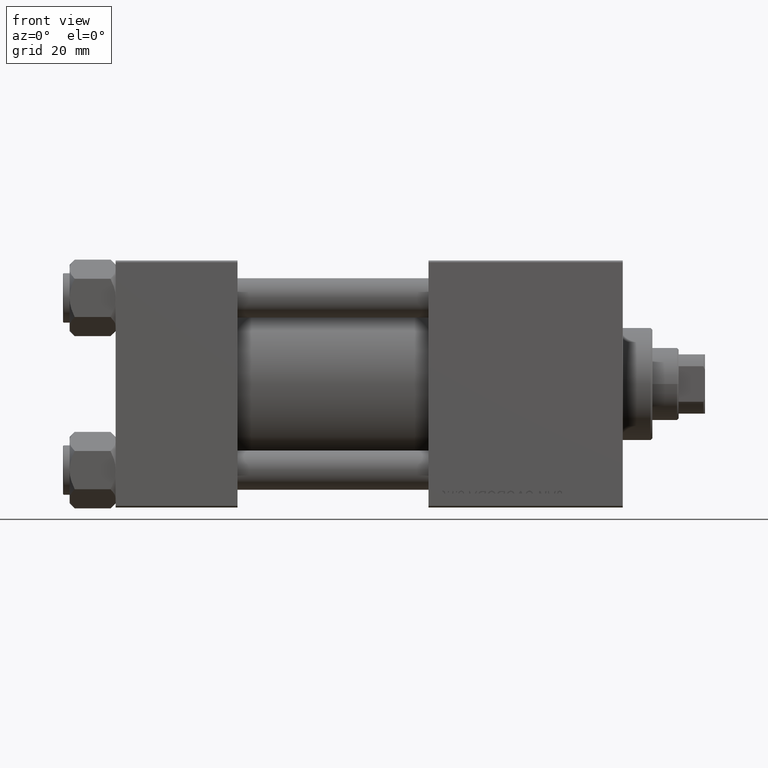
[diagram: clean part render]
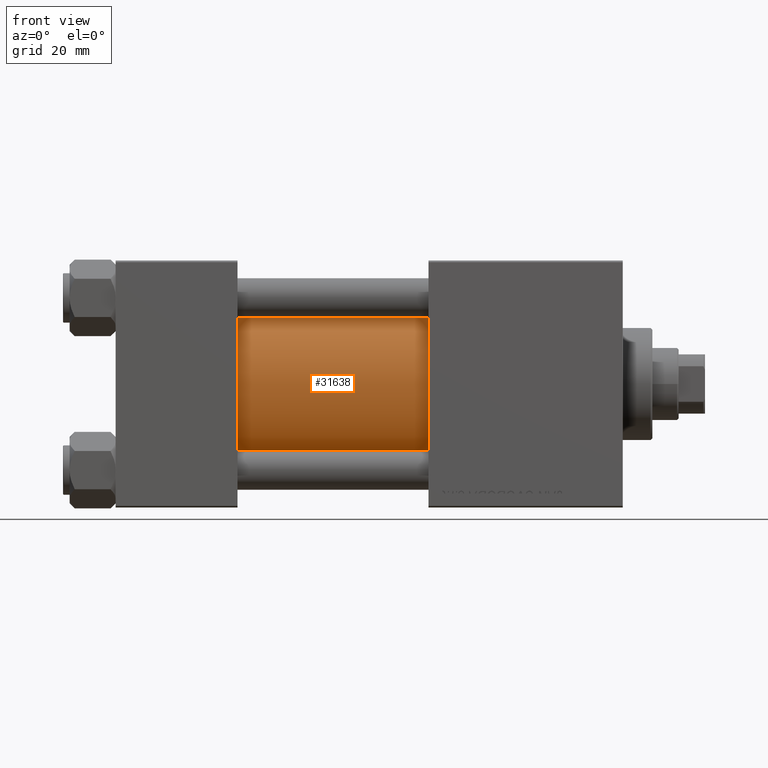
[diagram: same view with one face highlighted and labeled with its STEP entity id]
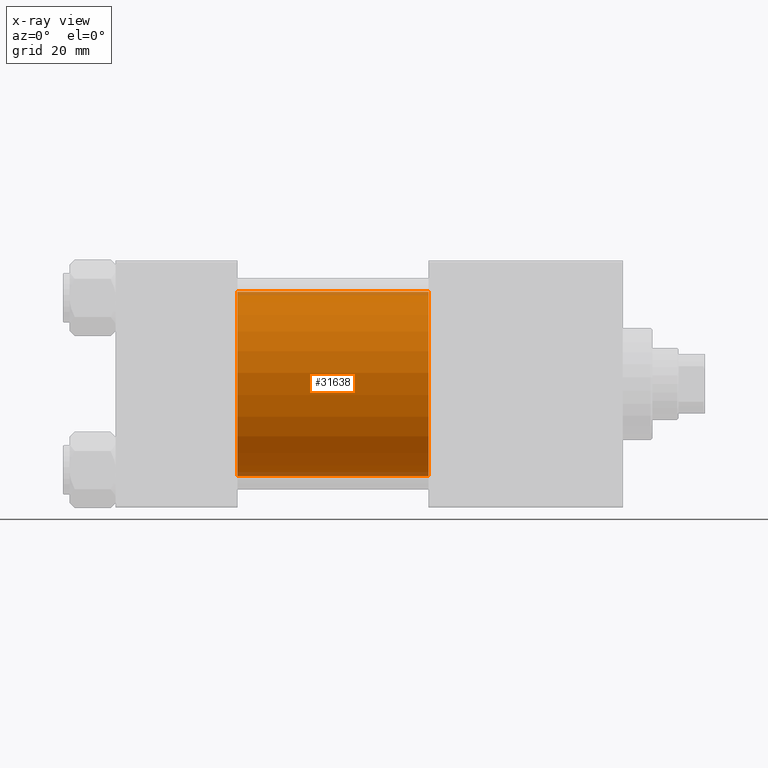
[diagram: x-ray of the same camera — body ghosted, the highlighted face saturated]
A machine part, front view. The second image highlights one B-rep face of the part: STEP entity #31638.
The next image is the same camera in x-ray: the body ghosted, the highlighted face saturated — about 4% of this face is hidden behind the body in this view.
In plain terms, the highlighted cylindrical surface (partial cylindrical patch) has radius 28 mm, axis along (-1, -0, -0).
Its self-contained STEP definition (entity closure, byte-faithful):
#164 = CARTESIAN_POINT ( 'NONE',  ( 95.00000000000000000, -2.602085213965210642E-15, 0.000000000000000000 ) ) ;
#1592 = DIRECTION ( 'NONE',  ( -1.000000000000000000, -0.000000000000000000, -0.000000000000000000 ) ) ;
#3144 = VECTOR ( 'NONE', #27318, 1000.000000000000000 ) ;
#3363 = AXIS2_PLACEMENT_3D ( 'NONE', #20796, #12644, #43453 ) ;
#8349 = VECTOR ( 'NONE', #1592, 1000.000000000000000 ) ;
#9065 = CIRCLE ( 'NONE', #3363, 28.00000000000000000 ) ;
#9921 = AXIS2_PLACEMENT_3D ( 'NONE', #164, #38321, #50055 ) ;
#10609 = ORIENTED_EDGE ( 'NONE', *, *, #28758, .F. ) ;
#12644 = DIRECTION ( 'NONE',  ( 1.000000000000000000, -0.000000000000000000, 0.000000000000000000 ) ) ;
#16845 = FACE_OUTER_BOUND ( 'NONE', #32785, .T. ) ;
#20454 = DIRECTION ( 'NONE',  ( -1.000000000000000000, -0.000000000000000000, -0.000000000000000000 ) ) ;
#20796 = CARTESIAN_POINT ( 'NONE',  ( 37.00000000000000000, -2.602085213965210642E-15, 0.000000000000000000 ) ) ;
#21097 = EDGE_CURVE ( 'NONE', #28567, #41861, #46670, .T. ) ;
#22113 = CIRCLE ( 'NONE', #9921, 28.00000000000000000 ) ;
#22415 = ORIENTED_EDGE ( 'NONE', *, *, #27429, .T. ) ;
#23543 = ORIENTED_EDGE ( 'NONE', *, *, #21097, .T. ) ;
#24950 = CARTESIAN_POINT ( 'NONE',  ( 37.00000000000000000, 8.269258236473776482E-16, -28.00000000000000000 ) ) ;
#25053 = VERTEX_POINT ( 'NONE', #36688 ) ;
#26563 = CARTESIAN_POINT ( 'NONE',  ( 95.00000000000000000, -2.602085213965210642E-15, 28.00000000000000000 ) ) ;
#27318 = DIRECTION ( 'NONE',  ( -1.000000000000000000, -0.000000000000000000, -0.000000000000000000 ) ) ;
#27429 = EDGE_CURVE ( 'NONE', #41861, #30475, #9065, .T. ) ;
#28567 = VERTEX_POINT ( 'NONE', #36069 ) ;
#28758 = EDGE_CURVE ( 'NONE', #28567, #25053, #22113, .T. ) ;
#30475 = VERTEX_POINT ( 'NONE', #24950 ) ;
#31624 = CYLINDRICAL_SURFACE ( 'NONE', #41552, 28.00000000000000000 ) ;
#31638 = ADVANCED_FACE ( 'NONE', ( #16845 ), #31624, .T. ) ;
#31900 = LINE ( 'NONE', #32141, #8349 ) ;
#32141 = CARTESIAN_POINT ( 'NONE',  ( 95.00000000000000000, 8.269258236473776482E-16, -28.00000000000000000 ) ) ;
#32664 = ORIENTED_EDGE ( 'NONE', *, *, #33598, .F. ) ;
#32785 = EDGE_LOOP ( 'NONE', ( #32664, #10609, #23543, #22415 ) ) ;
#33598 = EDGE_CURVE ( 'NONE', #25053, #30475, #31900, .T. ) ;
#35497 = CARTESIAN_POINT ( 'NONE',  ( 37.00000000000000000, -2.602085213965210642E-15, 28.00000000000000000 ) ) ;
#36069 = CARTESIAN_POINT ( 'NONE',  ( 95.00000000000000000, -2.602085213965210642E-15, 28.00000000000000000 ) ) ;
#36175 = CARTESIAN_POINT ( 'NONE',  ( 95.00000000000000000, -2.602085213965210642E-15, 0.000000000000000000 ) ) ;
#36688 = CARTESIAN_POINT ( 'NONE',  ( 95.00000000000000000, 8.269258236473776482E-16, -28.00000000000000000 ) ) ;
#38321 = DIRECTION ( 'NONE',  ( 1.000000000000000000, 0.000000000000000000, 0.000000000000000000 ) ) ;
#41552 = AXIS2_PLACEMENT_3D ( 'NONE', #36175, #20454, #43087 ) ;
#41861 = VERTEX_POINT ( 'NONE', #35497 ) ;
#43087 = DIRECTION ( 'NONE',  ( 0.000000000000000000, 0.000000000000000000, 1.000000000000000000 ) ) ;
#43453 = DIRECTION ( 'NONE',  ( 0.000000000000000000, 0.000000000000000000, 1.000000000000000000 ) ) ;
#46670 = LINE ( 'NONE', #26563, #3144 ) ;
#50055 = DIRECTION ( 'NONE',  ( 0.000000000000000000, 0.000000000000000000, -1.000000000000000000 ) ) ;